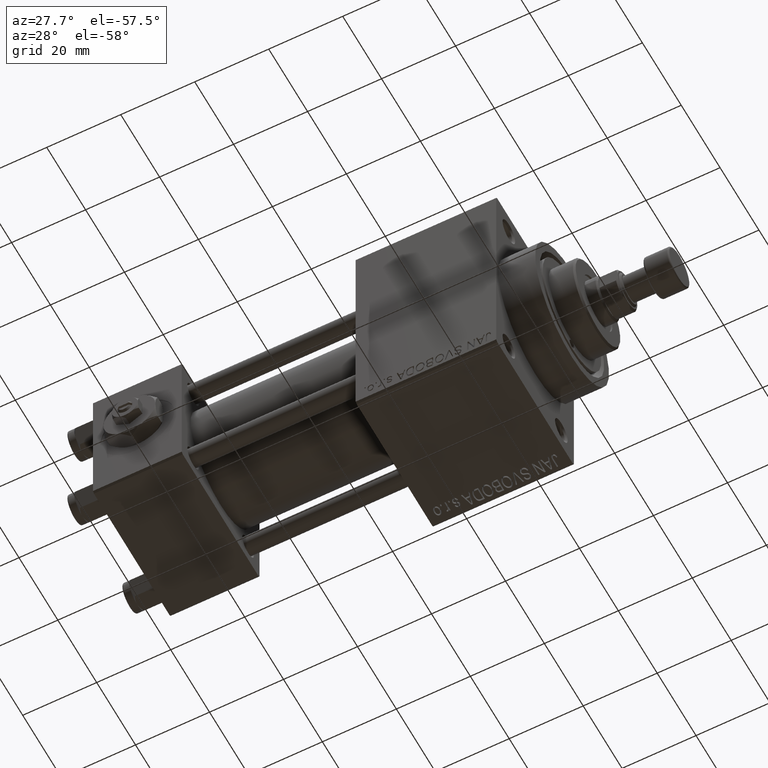
[diagram: clean part render]
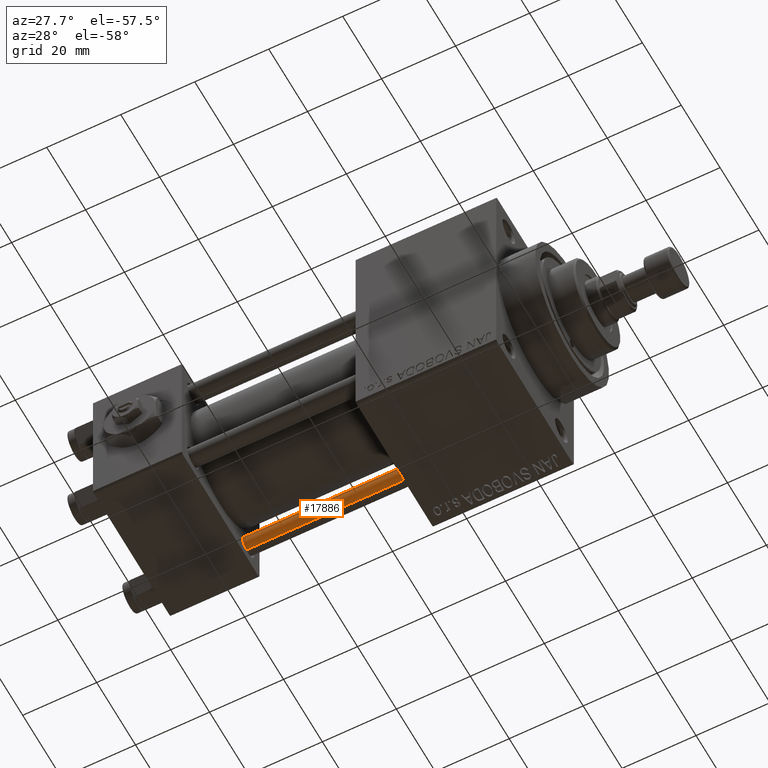
[diagram: same view with one face highlighted and labeled with its STEP entity id]
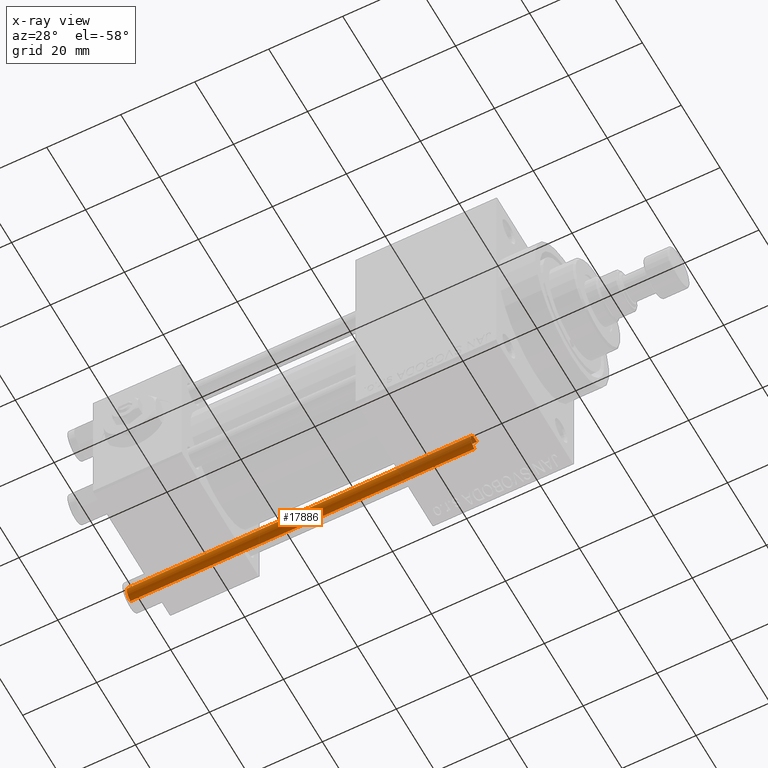
[diagram: x-ray of the same camera — body ghosted, the highlighted face saturated]
A machine part, auxiliary view. The second image highlights one B-rep face of the part: STEP entity #17886.
The next image is the same camera in x-ray: the body ghosted, the highlighted face saturated — about 12% of this face is hidden behind the body in this view.
In plain terms, the highlighted cylindrical surface (edge-blend (fillet) strip) has radius 2.5 mm, axis along (1, -0, 0).
Its self-contained STEP definition (entity closure, byte-faithful):
#62 = ORIENTED_EDGE ( 'NONE', *, *, #862, .F. ) ;
#862 = EDGE_CURVE ( 'NONE', #45749, #46784, #21275, .T. ) ;
#5899 = AXIS2_PLACEMENT_3D ( 'NONE', #29699, #26205, #46422 ) ;
#7421 = CARTESIAN_POINT ( 'NONE',  ( 0.000000000000000000, 0.000000000000000000, 94.00000000000000000 ) ) ;
#7667 = DIRECTION ( 'NONE',  ( -0.000000000000000000, -0.000000000000000000, -1.000000000000000000 ) ) ;
#8573 = DIRECTION ( 'NONE',  ( -0.000000000000000000, -0.000000000000000000, 1.000000000000000000 ) ) ;
#9149 = AXIS2_PLACEMENT_3D ( 'NONE', #7421, #7667, #37881 ) ;
#9444 = VECTOR ( 'NONE', #18020, 1000.000000000000000 ) ;
#10683 = CYLINDRICAL_SURFACE ( 'NONE', #9149, 2.500000000000000000 ) ;
#13110 = LINE ( 'NONE', #28347, #37017 ) ;
#15458 = EDGE_CURVE ( 'NONE', #45749, #20494, #22635, .T. ) ;
#16722 = EDGE_CURVE ( 'NONE', #20494, #45403, #13110, .T. ) ;
#17886 = ADVANCED_FACE ( 'NONE', ( #41647 ), #10683, .T. ) ;
#18020 = DIRECTION ( 'NONE',  ( -0.000000000000000000, -0.000000000000000000, -1.000000000000000000 ) ) ;
#20363 = DIRECTION ( 'NONE',  ( -0.000000000000000000, -0.000000000000000000, -1.000000000000000000 ) ) ;
#20412 = EDGE_CURVE ( 'NONE', #45403, #46784, #22772, .T. ) ;
#20494 = VERTEX_POINT ( 'NONE', #28531 ) ;
#21275 = LINE ( 'NONE', #48254, #9444 ) ;
#22613 = CARTESIAN_POINT ( 'NONE',  ( 2.500000000000000000, 3.061616997868383141E-16, 93.50000000000001421 ) ) ;
#22635 = CIRCLE ( 'NONE', #5899, 2.500000000000000000 ) ;
#22772 = CIRCLE ( 'NONE', #41918, 2.500000000000000000 ) ;
#23808 = DIRECTION ( 'NONE',  ( 1.000000000000000000, 0.000000000000000000, 0.000000000000000000 ) ) ;
#24658 = EDGE_LOOP ( 'NONE', ( #62, #24939, #25768, #47954 ) ) ;
#24939 = ORIENTED_EDGE ( 'NONE', *, *, #15458, .T. ) ;
#25768 = ORIENTED_EDGE ( 'NONE', *, *, #16722, .T. ) ;
#26205 = DIRECTION ( 'NONE',  ( 0.000000000000000000, 0.000000000000000000, -1.000000000000000000 ) ) ;
#26830 = CARTESIAN_POINT ( 'NONE',  ( 0.000000000000000000, 0.000000000000000000, 0.5000000000000004441 ) ) ;
#28347 = CARTESIAN_POINT ( 'NONE',  ( -2.500000000000000000, 0.000000000000000000, 94.00000000000000000 ) ) ;
#28531 = CARTESIAN_POINT ( 'NONE',  ( -2.500000000000000000, 0.000000000000000000, 93.50000000000001421 ) ) ;
#29699 = CARTESIAN_POINT ( 'NONE',  ( 0.000000000000000000, 0.000000000000000000, 93.50000000000001421 ) ) ;
#34131 = CARTESIAN_POINT ( 'NONE',  ( -2.500000000000000000, 0.000000000000000000, 0.5000000000000004441 ) ) ;
#37017 = VECTOR ( 'NONE', #20363, 1000.000000000000000 ) ;
#37881 = DIRECTION ( 'NONE',  ( -1.000000000000000000, 0.000000000000000000, 0.000000000000000000 ) ) ;
#38414 = CARTESIAN_POINT ( 'NONE',  ( 2.500000000000000000, 3.061616997868383141E-16, 0.5000000000000004441 ) ) ;
#41647 = FACE_OUTER_BOUND ( 'NONE', #24658, .T. ) ;
#41918 = AXIS2_PLACEMENT_3D ( 'NONE', #26830, #8573, #23808 ) ;
#45403 = VERTEX_POINT ( 'NONE', #34131 ) ;
#45749 = VERTEX_POINT ( 'NONE', #22613 ) ;
#46422 = DIRECTION ( 'NONE',  ( 1.000000000000000000, 0.000000000000000000, 0.000000000000000000 ) ) ;
#46784 = VERTEX_POINT ( 'NONE', #38414 ) ;
#47954 = ORIENTED_EDGE ( 'NONE', *, *, #20412, .T. ) ;
#48254 = CARTESIAN_POINT ( 'NONE',  ( 2.500000000000000000, 3.061616997868383141E-16, 94.00000000000000000 ) ) ;